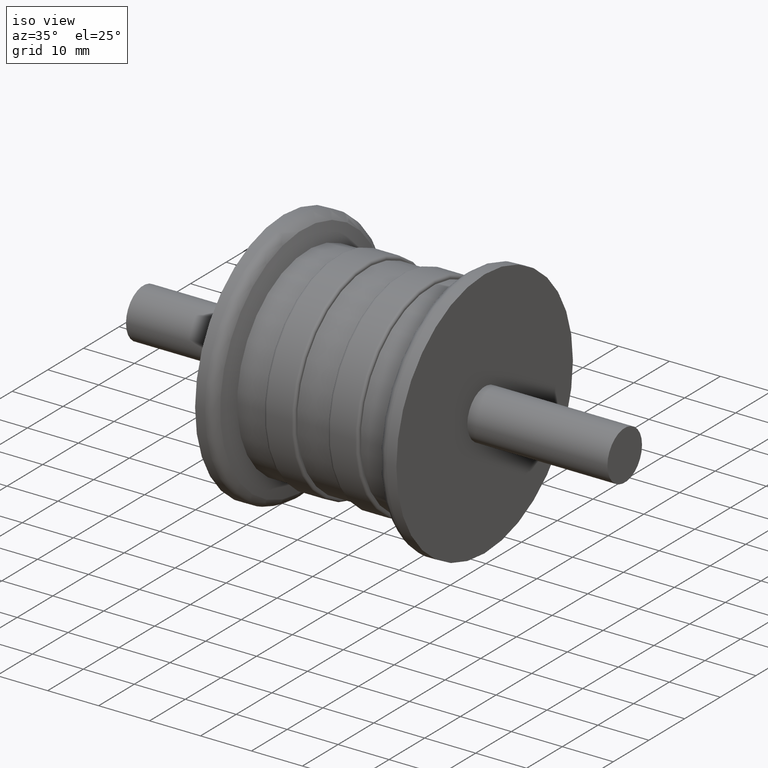
[diagram: clean part render]
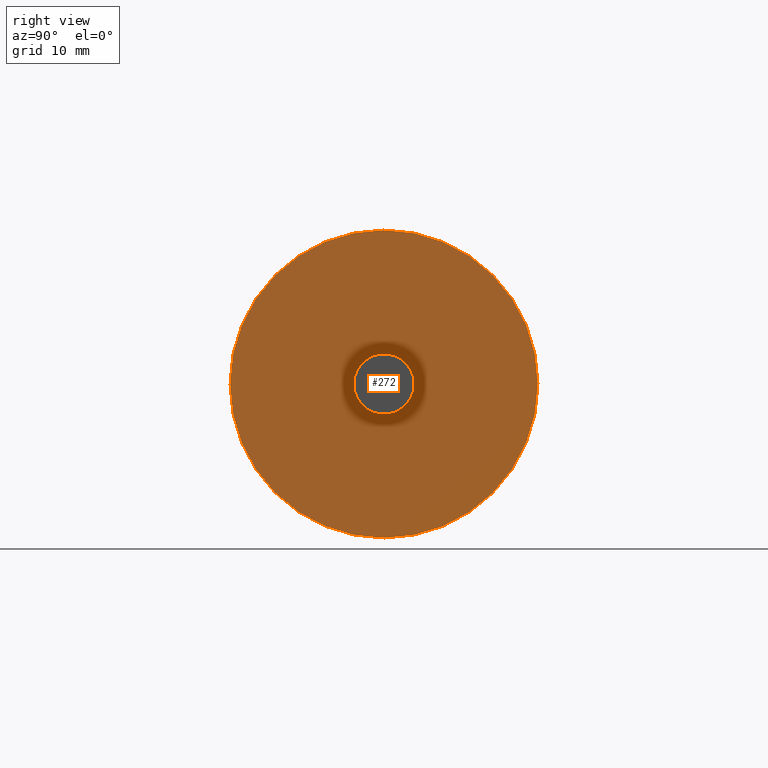
[diagram: tour spotlight — one face highlighted and labeled with its STEP entity id]
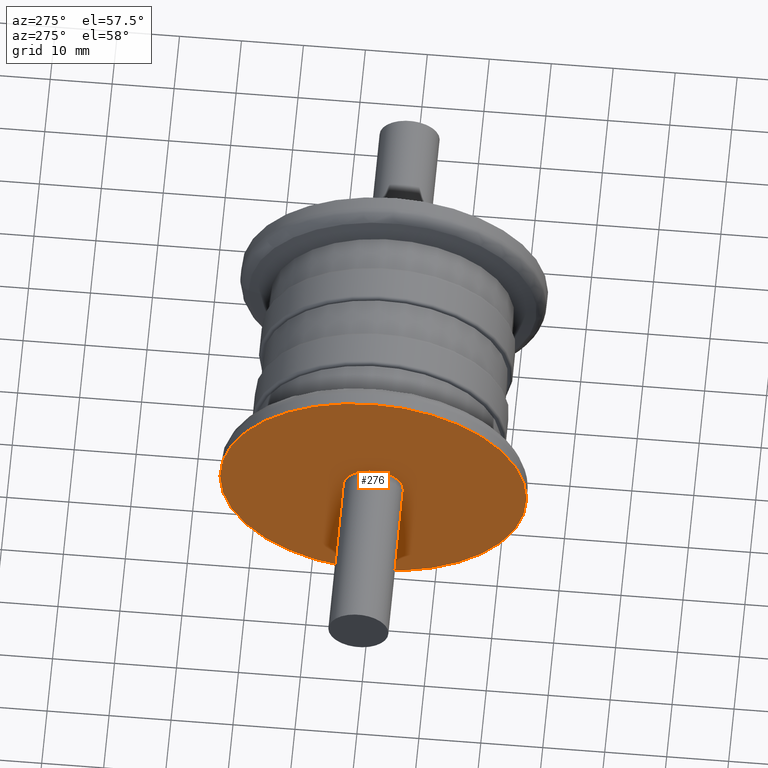
[diagram: tour spotlight — one face highlighted and labeled with its STEP entity id]
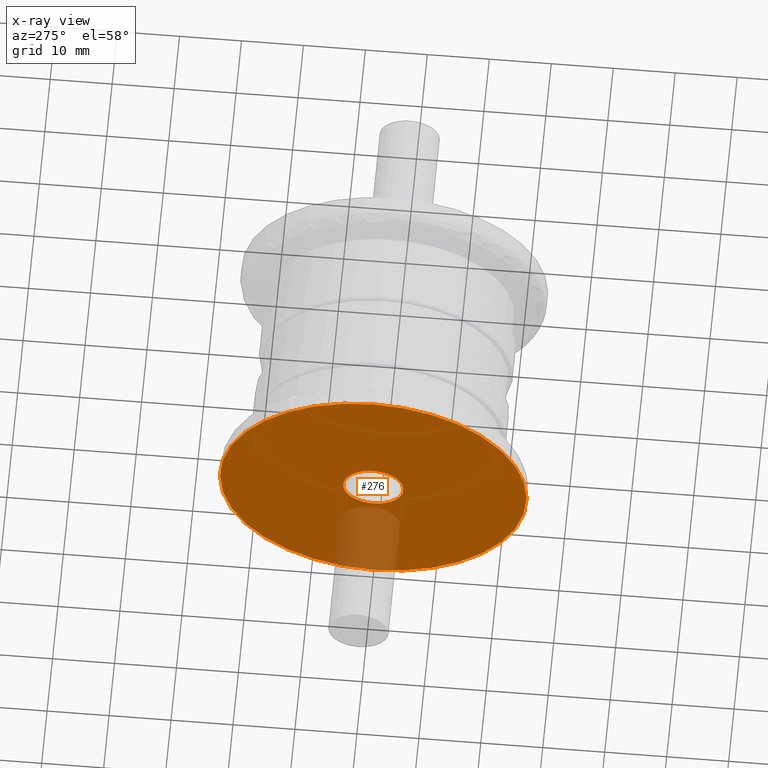
[diagram: x-ray of the same camera — body ghosted, this tour face saturated]
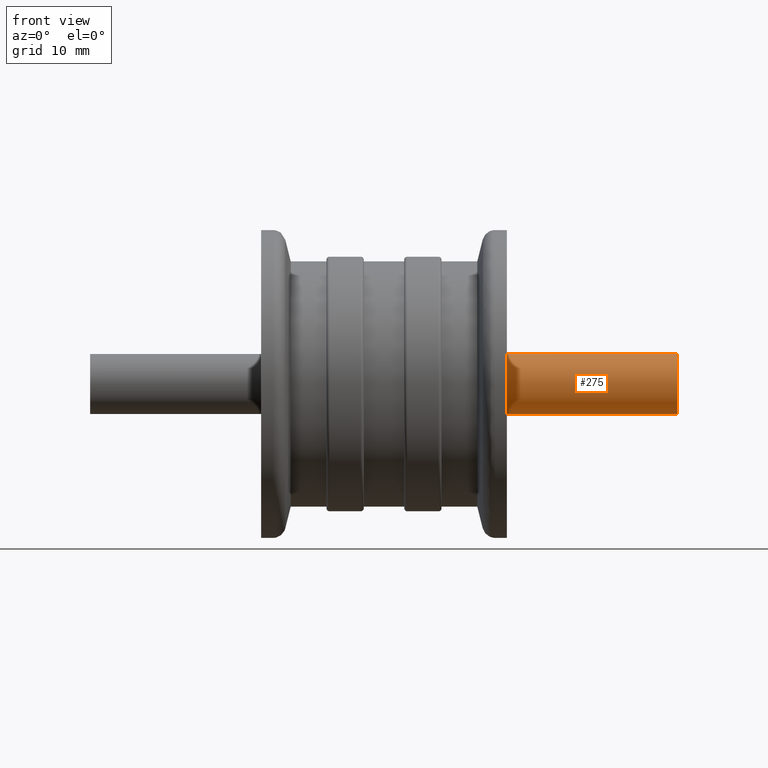
[diagram: tour spotlight — one face highlighted and labeled with its STEP entity id]
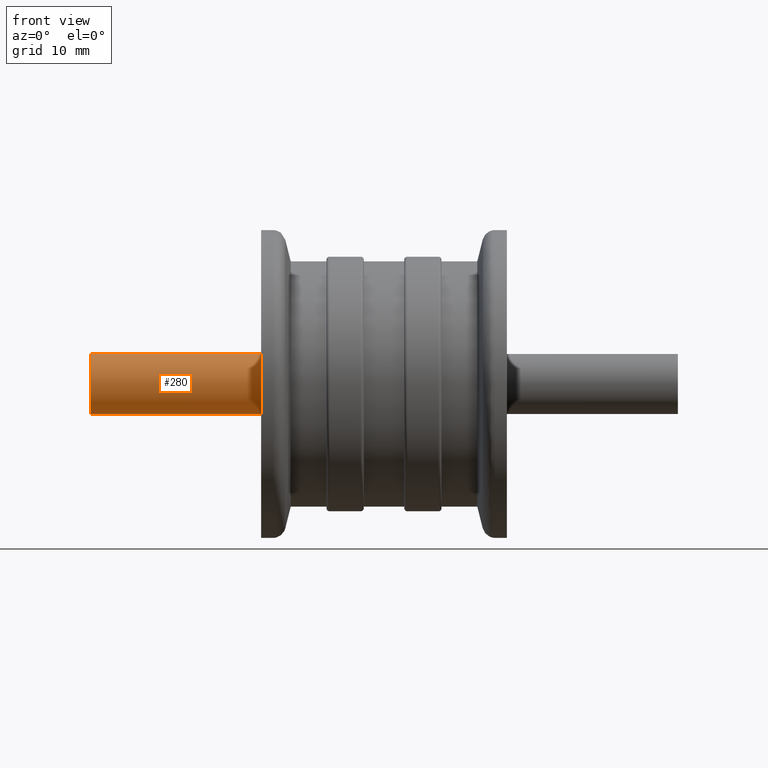
[diagram: tour spotlight — one face highlighted and labeled with its STEP entity id]
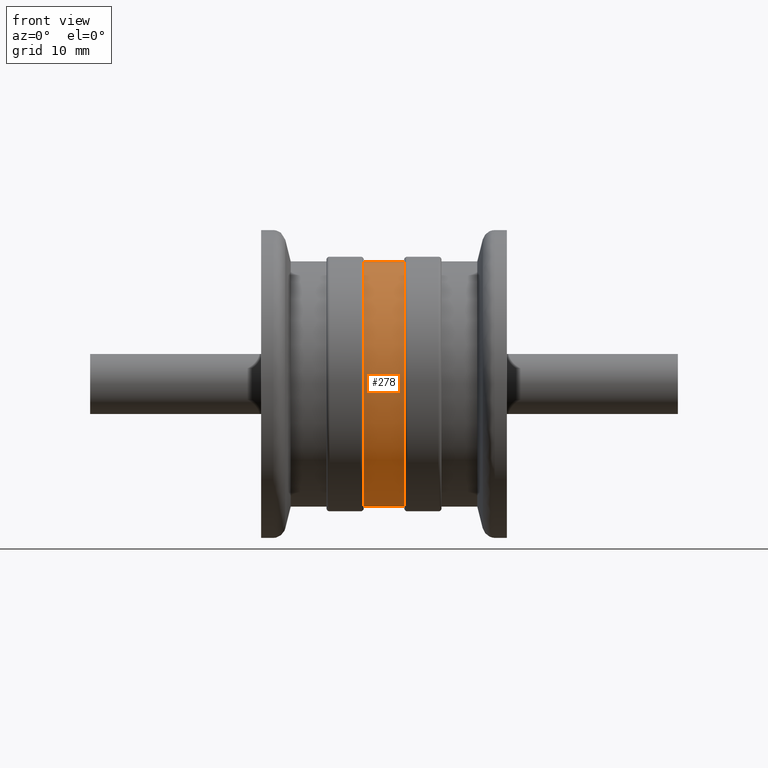
[diagram: tour spotlight — one face highlighted and labeled with its STEP entity id]
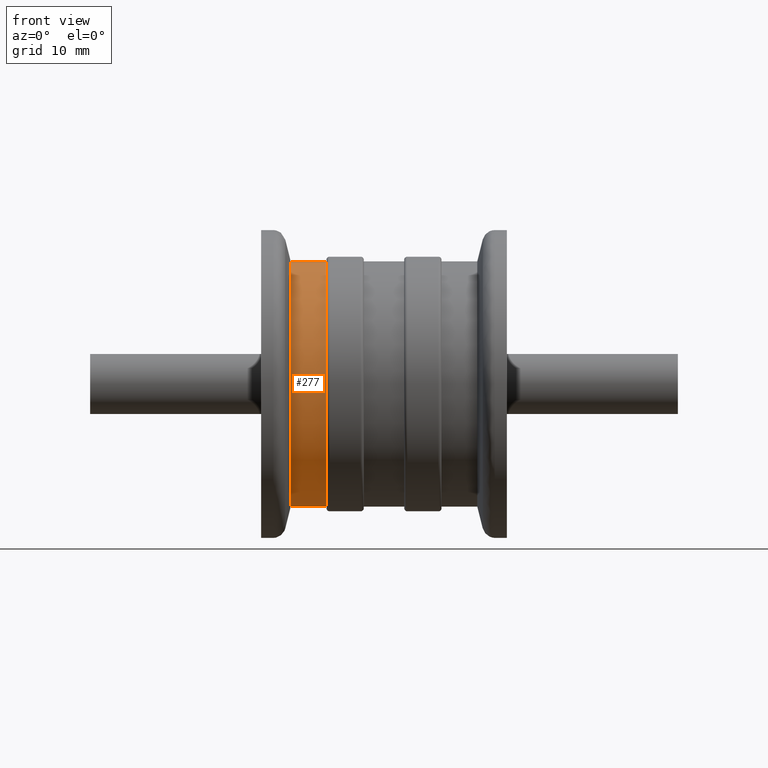
[diagram: tour spotlight — one face highlighted and labeled with its STEP entity id]
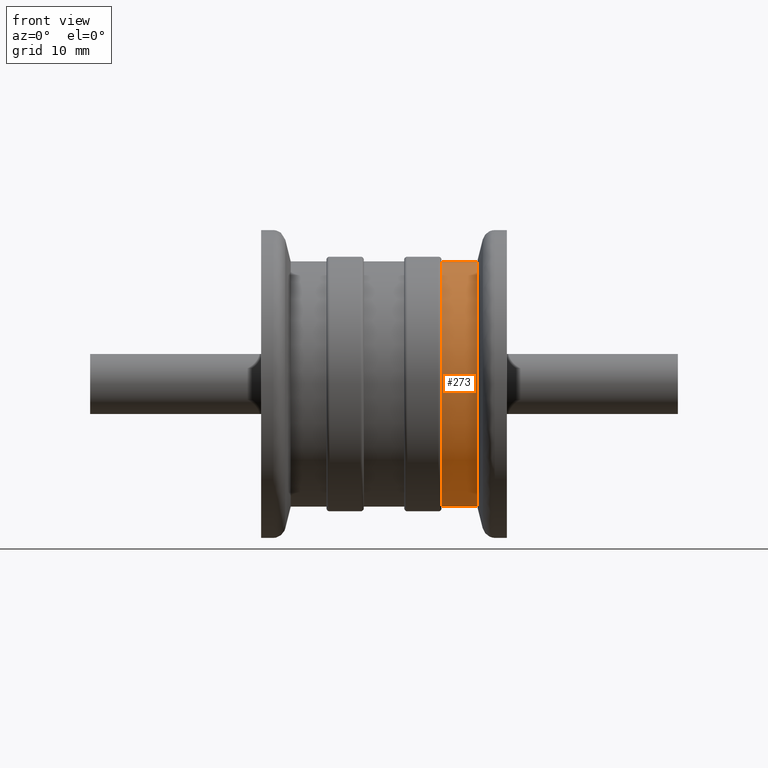
[diagram: tour spotlight — one face highlighted and labeled with its STEP entity id]
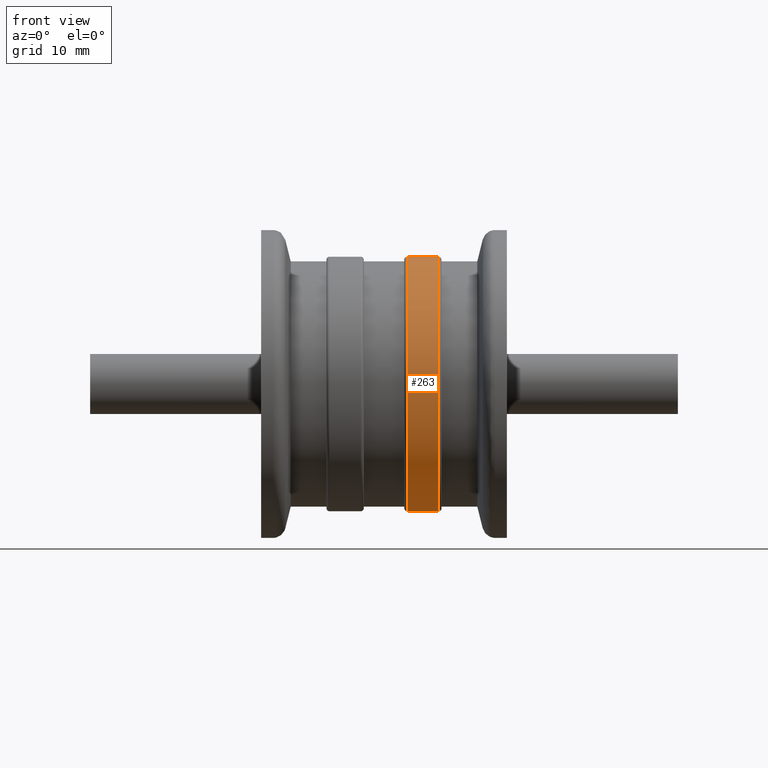
[diagram: tour spotlight — one face highlighted and labeled with its STEP entity id]
A machine part: a face-by-face anatomy tour. The part has 25 B-rep faces; the first image is the clean iso view, then the 8 largest visible faces are spotlighted one at a time (largest first), each with its STEP entity span.

Face 1 — right view, entity #272. In plain terms, the highlighted planar face has unit normal (-1, -0, 0).
Definition (entity closure, byte-faithful):
#19=PLANE('',#319);
#50=FACE_BOUND('',#115,.T.);
#73=FACE_OUTER_BOUND('',#114,.T.);
#114=EDGE_LOOP('',(#234));
#115=EDGE_LOOP('',(#235));
#136=CIRCLE('',#294,24.75);
#150=CIRCLE('',#320,4.85);
#160=VERTEX_POINT('',#450);
#174=VERTEX_POINT('',#490);
#184=EDGE_CURVE('',#160,#160,#136,.T.);
#198=EDGE_CURVE('',#174,#174,#150,.T.);
#234=ORIENTED_EDGE('',*,*,#184,.T.);
#235=ORIENTED_EDGE('',*,*,#198,.F.);
#272=ADVANCED_FACE('',(#73,#50),#19,.F.);
#294=AXIS2_PLACEMENT_3D('',#451,#356,#357);
#319=AXIS2_PLACEMENT_3D('',#489,#406,#407);
#320=AXIS2_PLACEMENT_3D('',#491,#408,#409);
#356=DIRECTION('center_axis',(1.,2.24855296126614E-16,0.));
#357=DIRECTION('ref_axis',(0.,0.,-1.));
#406=DIRECTION('center_axis',(-1.,-2.24855296126614E-16,0.));
#407=DIRECTION('ref_axis',(0.,0.,1.));
#408=DIRECTION('center_axis',(1.,2.24855296126614E-16,0.));
#409=DIRECTION('ref_axis',(0.,0.,-1.));
#450=CARTESIAN_POINT('',(19.75,24.75,0.));
#451=CARTESIAN_POINT('Origin',(19.75,4.44089209850062E-15,0.));
#489=CARTESIAN_POINT('Origin',(19.75,24.75,0.));
#490=CARTESIAN_POINT('',(19.75,4.85,0.));
#491=CARTESIAN_POINT('Origin',(19.75,4.44089209850063E-15,0.));

Face 2 — auxiliary view, entity #276. An x-ray twin of the same camera follows (body ghosted, this face saturated) — the face is partly hidden behind the body. In plain terms, the highlighted planar face has unit normal (-1, -0, 0).
Definition (entity closure, byte-faithful):
#21=PLANE('',#325);
#53=FACE_BOUND('',#122,.T.);
#77=FACE_OUTER_BOUND('',#121,.T.);
#121=EDGE_LOOP('',(#241));
#122=EDGE_LOOP('',(#242));
#132=CIRCLE('',#287,24.75);
#152=CIRCLE('',#326,4.85);
#156=VERTEX_POINT('',#439);
#176=VERTEX_POINT('',#498);
#180=EDGE_CURVE('',#156,#156,#132,.T.);
#200=EDGE_CURVE('',#176,#176,#152,.T.);
#241=ORIENTED_EDGE('',*,*,#180,.F.);
#242=ORIENTED_EDGE('',*,*,#200,.T.);
#276=ADVANCED_FACE('',(#77,#53),#21,.T.);
#287=AXIS2_PLACEMENT_3D('',#440,#342,#343);
#325=AXIS2_PLACEMENT_3D('',#497,#418,#419);
#326=AXIS2_PLACEMENT_3D('',#499,#420,#421);
#342=DIRECTION('center_axis',(1.,2.24855296126614E-16,0.));
#343=DIRECTION('ref_axis',(0.,0.,-1.));
#418=DIRECTION('center_axis',(-1.,-2.24855296126614E-16,0.));
#419=DIRECTION('ref_axis',(0.,0.,1.));
#420=DIRECTION('center_axis',(1.,2.24855296126614E-16,0.));
#421=DIRECTION('ref_axis',(0.,0.,-1.));
#439=CARTESIAN_POINT('',(-19.75,24.75,0.));
#440=CARTESIAN_POINT('Origin',(-19.75,-4.44089209850062E-15,0.));
#497=CARTESIAN_POINT('Origin',(-19.75,24.75,0.));
#498=CARTESIAN_POINT('',(-19.75,4.84999999999999,0.));
#499=CARTESIAN_POINT('Origin',(-19.75,-4.44089209850063E-15,0.));

Face 3 — front view, entity #275. In plain terms, the highlighted cylindrical surface (bore or boss wall) has radius 4.85 mm, axis along (1, 0, 0).
Definition (entity closure, byte-faithful):
#30=CYLINDRICAL_SURFACE('',#324,4.85);
#52=FACE_BOUND('',#120,.T.);
#76=FACE_OUTER_BOUND('',#119,.T.);
#119=EDGE_LOOP('',(#239));
#120=EDGE_LOOP('',(#240));
#150=CIRCLE('',#320,4.85);
#151=CIRCLE('',#323,4.85);
#174=VERTEX_POINT('',#490);
#175=VERTEX_POINT('',#494);
#198=EDGE_CURVE('',#174,#174,#150,.T.);
#199=EDGE_CURVE('',#175,#175,#151,.T.);
#239=ORIENTED_EDGE('',*,*,#199,.F.);
#240=ORIENTED_EDGE('',*,*,#198,.T.);
#275=ADVANCED_FACE('',(#76,#52),#30,.T.);
#320=AXIS2_PLACEMENT_3D('',#491,#408,#409);
#323=AXIS2_PLACEMENT_3D('',#495,#414,#415);
#324=AXIS2_PLACEMENT_3D('',#496,#416,#417);
#408=DIRECTION('center_axis',(1.,2.24855296126614E-16,0.));
#409=DIRECTION('ref_axis',(0.,0.,-1.));
#414=DIRECTION('center_axis',(1.,2.24855296126614E-16,0.));
#415=DIRECTION('ref_axis',(0.,0.,-1.));
#416=DIRECTION('center_axis',(1.,2.24855296126614E-16,0.));
#417=DIRECTION('ref_axis',(-4.49710592253228E-16,1.,0.));
#490=CARTESIAN_POINT('',(19.75,4.85,0.));
#491=CARTESIAN_POINT('Origin',(19.75,4.44089209850063E-15,0.));
#494=CARTESIAN_POINT('',(47.25,4.85000000000001,0.));
#495=CARTESIAN_POINT('Origin',(47.25,1.06244127419825E-14,0.));
#496=CARTESIAN_POINT('Origin',(33.5,7.53265242024157E-15,0.));

Face 4 — front view, entity #280. In plain terms, the highlighted cylindrical surface (bore or boss wall) has radius 4.85 mm, axis along (1, 0, 0).
Definition (entity closure, byte-faithful):
#33=CYLINDRICAL_SURFACE('',#331,4.85);
#56=FACE_BOUND('',#129,.T.);
#81=FACE_OUTER_BOUND('',#128,.T.);
#128=EDGE_LOOP('',(#248));
#129=EDGE_LOOP('',(#249));
#152=CIRCLE('',#326,4.85);
#153=CIRCLE('',#330,4.85);
#176=VERTEX_POINT('',#498);
#177=VERTEX_POINT('',#503);
#200=EDGE_CURVE('',#176,#176,#152,.T.);
#201=EDGE_CURVE('',#177,#177,#153,.T.);
#248=ORIENTED_EDGE('',*,*,#201,.T.);
#249=ORIENTED_EDGE('',*,*,#200,.F.);
#280=ADVANCED_FACE('',(#81,#56),#33,.T.);
#326=AXIS2_PLACEMENT_3D('',#499,#420,#421);
#330=AXIS2_PLACEMENT_3D('',#504,#428,#429);
#331=AXIS2_PLACEMENT_3D('',#505,#430,#431);
#420=DIRECTION('center_axis',(1.,2.24855296126614E-16,0.));
#421=DIRECTION('ref_axis',(0.,0.,-1.));
#428=DIRECTION('center_axis',(1.,2.24855296126614E-16,0.));
#429=DIRECTION('ref_axis',(0.,0.,-1.));
#430=DIRECTION('center_axis',(1.,2.24855296126614E-16,0.));
#431=DIRECTION('ref_axis',(0.,1.,0.));
#498=CARTESIAN_POINT('',(-19.75,4.84999999999999,0.));
#499=CARTESIAN_POINT('Origin',(-19.75,-4.44089209850063E-15,0.));
#503=CARTESIAN_POINT('',(-47.25,4.84999999999999,0.));
#504=CARTESIAN_POINT('Origin',(-47.25,-1.06244127419825E-14,0.));
#505=CARTESIAN_POINT('Origin',(-33.5,-7.53265242024157E-15,0.));

Face 5 — front view, entity #278. In plain terms, the highlighted cylindrical surface (bore or boss wall) has radius 19.75 mm, axis along (1, 0, 0).
Definition (entity closure, byte-faithful):
#32=CYLINDRICAL_SURFACE('',#328,19.75);
#55=FACE_BOUND('',#126,.T.);
#79=FACE_OUTER_BOUND('',#125,.T.);
#125=EDGE_LOOP('',(#245));
#126=EDGE_LOOP('',(#246));
#143=CIRCLE('',#307,19.75);
#147=CIRCLE('',#314,19.75);
#167=VERTEX_POINT('',#470);
#171=VERTEX_POINT('',#481);
#191=EDGE_CURVE('',#167,#167,#143,.T.);
#195=EDGE_CURVE('',#171,#171,#147,.T.);
#245=ORIENTED_EDGE('',*,*,#191,.F.);
#246=ORIENTED_EDGE('',*,*,#195,.T.);
#278=ADVANCED_FACE('',(#79,#55),#32,.T.);
#307=AXIS2_PLACEMENT_3D('',#471,#382,#383);
#314=AXIS2_PLACEMENT_3D('',#482,#396,#397);
#328=AXIS2_PLACEMENT_3D('',#501,#424,#425);
#382=DIRECTION('center_axis',(1.,2.24855296126614E-16,0.));
#383=DIRECTION('ref_axis',(0.,0.,-1.));
#396=DIRECTION('center_axis',(1.,2.24855296126614E-16,0.));
#397=DIRECTION('ref_axis',(0.,0.,-1.));
#424=DIRECTION('center_axis',(1.,2.24855296126614E-16,0.));
#425=DIRECTION('ref_axis',(-2.24855296126614E-16,1.,0.));
#470=CARTESIAN_POINT('',(3.25,19.75,0.));
#471=CARTESIAN_POINT('Origin',(3.25,7.30779712411496E-16,0.));
#481=CARTESIAN_POINT('',(-3.25000000000001,19.75,0.));
#482=CARTESIAN_POINT('Origin',(-3.25,-7.30779712411496E-16,0.));
#501=CARTESIAN_POINT('Origin',(-1.625,-3.65389856205747E-16,0.));

Face 6 — front view, entity #277. In plain terms, the highlighted cylindrical surface (bore or boss wall) has radius 19.75 mm, axis along (1, 0, 0).
Definition (entity closure, byte-faithful):
#31=CYLINDRICAL_SURFACE('',#327,19.75);
#54=FACE_BOUND('',#124,.T.);
#78=FACE_OUTER_BOUND('',#123,.T.);
#123=EDGE_LOOP('',(#243));
#124=EDGE_LOOP('',(#244));
#133=CIRCLE('',#289,19.75);
#149=CIRCLE('',#318,19.75);
#157=VERTEX_POINT('',#442);
#173=VERTEX_POINT('',#487);
#181=EDGE_CURVE('',#157,#157,#133,.T.);
#197=EDGE_CURVE('',#173,#173,#149,.T.);
#243=ORIENTED_EDGE('',*,*,#181,.T.);
#244=ORIENTED_EDGE('',*,*,#197,.F.);
#277=ADVANCED_FACE('',(#78,#54),#31,.T.);
#289=AXIS2_PLACEMENT_3D('',#443,#346,#347);
#318=AXIS2_PLACEMENT_3D('',#488,#404,#405);
#327=AXIS2_PLACEMENT_3D('',#500,#422,#423);
#346=DIRECTION('center_axis',(1.,2.24855296126614E-16,0.));
#347=DIRECTION('ref_axis',(0.,0.,-1.));
#404=DIRECTION('center_axis',(1.,2.24855296126614E-16,0.));
#405=DIRECTION('ref_axis',(0.,0.,-1.));
#422=DIRECTION('center_axis',(1.,2.24855296126614E-16,0.));
#423=DIRECTION('ref_axis',(-2.24855296126614E-16,1.,0.));
#442=CARTESIAN_POINT('',(-15.,19.75,0.));
#443=CARTESIAN_POINT('Origin',(-15.,-3.37282944189921E-15,0.));
#487=CARTESIAN_POINT('',(-9.25000000000001,19.75,0.));
#488=CARTESIAN_POINT('Origin',(-9.25,-2.07991148917118E-15,0.));
#500=CARTESIAN_POINT('Origin',(-12.125,-2.72637046553519E-15,0.));

Face 7 — front view, entity #273. In plain terms, the highlighted cylindrical surface (bore or boss wall) has radius 19.75 mm, axis along (1, 0, 0).
Definition (entity closure, byte-faithful):
#29=CYLINDRICAL_SURFACE('',#321,19.75);
#51=FACE_BOUND('',#117,.T.);
#74=FACE_OUTER_BOUND('',#116,.T.);
#116=EDGE_LOOP('',(#236));
#117=EDGE_LOOP('',(#237));
#137=CIRCLE('',#296,19.75);
#141=CIRCLE('',#303,19.75);
#161=VERTEX_POINT('',#453);
#165=VERTEX_POINT('',#464);
#185=EDGE_CURVE('',#161,#161,#137,.T.);
#189=EDGE_CURVE('',#165,#165,#141,.T.);
#236=ORIENTED_EDGE('',*,*,#185,.F.);
#237=ORIENTED_EDGE('',*,*,#189,.T.);
#273=ADVANCED_FACE('',(#74,#51),#29,.T.);
#296=AXIS2_PLACEMENT_3D('',#454,#360,#361);
#303=AXIS2_PLACEMENT_3D('',#465,#374,#375);
#321=AXIS2_PLACEMENT_3D('',#492,#410,#411);
#360=DIRECTION('center_axis',(1.,2.24855296126614E-16,0.));
#361=DIRECTION('ref_axis',(0.,0.,-1.));
#374=DIRECTION('center_axis',(1.,2.24855296126614E-16,0.));
#375=DIRECTION('ref_axis',(0.,0.,-1.));
#410=DIRECTION('center_axis',(1.,2.24855296126614E-16,0.));
#411=DIRECTION('ref_axis',(-2.24855296126614E-16,1.,0.));
#453=CARTESIAN_POINT('',(15.,19.75,0.));
#454=CARTESIAN_POINT('Origin',(15.,3.37282944189921E-15,0.));
#464=CARTESIAN_POINT('',(9.25,19.75,0.));
#465=CARTESIAN_POINT('Origin',(9.25,2.07991148917118E-15,0.));
#492=CARTESIAN_POINT('Origin',(12.125,2.72637046553519E-15,0.));

Face 8 — front view, entity #263. In plain terms, the highlighted cylindrical surface (bore or boss wall) has radius 20.5 mm, axis along (1, 0, 0).
Definition (entity closure, byte-faithful):
#27=CYLINDRICAL_SURFACE('',#300,20.5);
#41=FACE_BOUND('',#97,.T.);
#64=FACE_OUTER_BOUND('',#96,.T.);
#96=EDGE_LOOP('',(#216));
#97=EDGE_LOOP('',(#217));
#138=CIRCLE('',#298,20.5);
#140=CIRCLE('',#301,20.5);
#162=VERTEX_POINT('',#456);
#164=VERTEX_POINT('',#461);
#186=EDGE_CURVE('',#162,#162,#138,.T.);
#188=EDGE_CURVE('',#164,#164,#140,.T.);
#216=ORIENTED_EDGE('',*,*,#188,.F.);
#217=ORIENTED_EDGE('',*,*,#186,.F.);
#263=ADVANCED_FACE('',(#64,#41),#27,.T.);
#298=AXIS2_PLACEMENT_3D('',#457,#364,#365);
#300=AXIS2_PLACEMENT_3D('',#460,#368,#369);
#301=AXIS2_PLACEMENT_3D('',#462,#370,#371);
#364=DIRECTION('center_axis',(1.,2.24855296126614E-16,0.));
#365=DIRECTION('ref_axis',(2.23398535442867E-16,-1.,1.83697019872103E-16));
#368=DIRECTION('center_axis',(1.,2.24855296126614E-16,0.));
#369=DIRECTION('ref_axis',(-2.24855296126614E-16,1.,0.));
#370=DIRECTION('center_axis',(-1.,-2.24855296126614E-16,0.));
#371=DIRECTION('ref_axis',(2.23398535442867E-16,-1.,1.83697019872103E-16));
#456=CARTESIAN_POINT('',(8.75,20.5,-1.25526296912604E-15));
#457=CARTESIAN_POINT('Origin',(8.75,1.96748384110787E-15,0.));
#460=CARTESIAN_POINT('Origin',(6.25,1.40534560079134E-15,0.));
#461=CARTESIAN_POINT('',(3.75,20.5,-6.27631484563019E-15));
#462=CARTESIAN_POINT('Origin',(3.75,8.43207360474803E-16,0.));